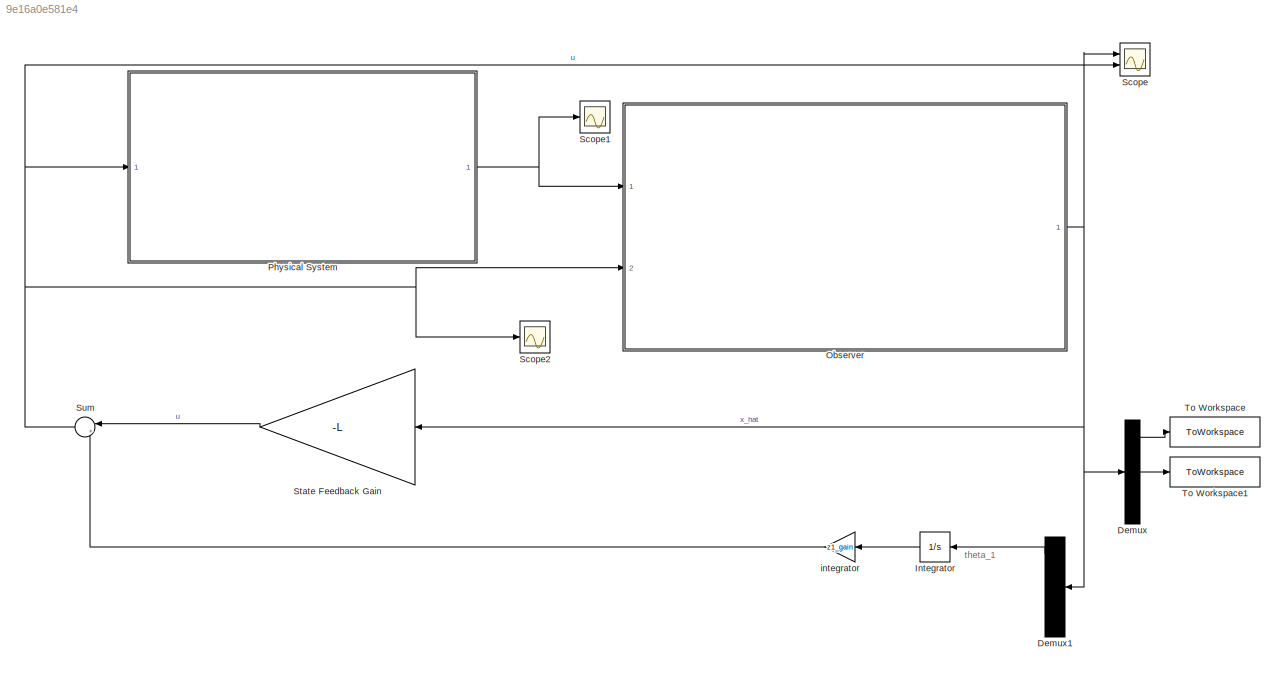
MODEL slx_9e16a0e581e4
KIND model
CONFIG AbsTol = auto
CONFIG EnableMultiTasking = on
CONFIG FixedStep = time_step
CONFIG MaxStep = auto
CONFIG MinStep = auto
CONFIG RelTol = 1e-3
CONFIG SampleTimeConstraint = Unconstrained
CONFIG SolverName = FixedStepAuto
CONFIG StartTime = 0.0
CONFIG StopTime = RunTime
BLOCK [Demux] Demux
  Outputs = 5
  Ports = [1, 5]
BLOCK [Demux] Demux1
  Outputs = 5
  Ports = [1, 5]
BLOCK [Integrator] Integrator
  Ports = [1, 1]
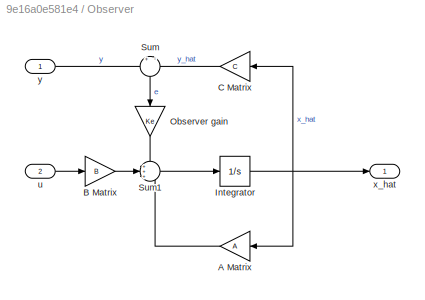
BLOCK [SubSystem] Observer
  Ports = [2, 1]
  RequestExecContextInheritance = off
BLOCK [Gain] Observer/A Matrix
  Gain = A
  Multiplication = Matrix(K*u)
BLOCK [Gain] Observer/B Matrix
  Gain = B
  Multiplication = Matrix(K*u)
BLOCK [Gain] Observer/C Matrix
  Gain = C
  Multiplication = Matrix(K*u)
BLOCK [Integrator] Observer/Integrator
  Ports = [1, 1]
BLOCK [Gain] Observer/Observer gain
  Gain = Ke
  Multiplication = Matrix(K*u)
  NameLocation = left
BLOCK [Sum] Observer/Sum
  Inputs = +|-
  NameLocation = left
  Ports = [2, 1]
BLOCK [Sum] Observer/Sum1
  Inputs = +++
  Ports = [3, 1]
BLOCK [Inport] Observer/u
  Port = 2
BLOCK [Outport] Observer/x_hat
BLOCK [Inport] Observer/y
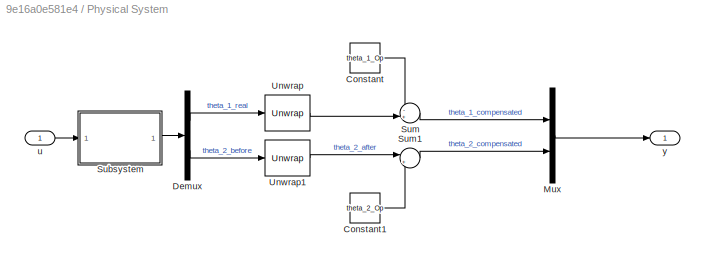
BLOCK [SubSystem] Physical System
  Ports = [1, 1]
  RequestExecContextInheritance = off
BLOCK [Constant] Physical System/Constant
  Value = theta_1_Op
BLOCK [Constant] Physical System/Constant1
  Value = theta_2_Op
BLOCK [Demux] Physical System/Demux
  Outputs = 2
  Ports = [1, 2]
BLOCK [Mux] Physical System/Mux
  DisplayOption = bar
  Inputs = 2
  Ports = [2, 1]
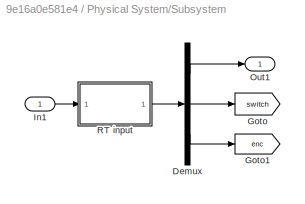
BLOCK [SubSystem] Physical System/Subsystem
  Ports = [1, 1]
  RequestExecContextInheritance = off
BLOCK [Demux] Physical System/Subsystem/Demux
  Outputs = [2 4 1]
  Ports = [1, 3]
BLOCK [Goto] Physical System/Subsystem/Goto
  GotoTag = switch
  TagVisibility = global
BLOCK [Goto] Physical System/Subsystem/Goto1
  GotoTag = enc
  TagVisibility = global
BLOCK [Inport] Physical System/Subsystem/In1
BLOCK [Outport] Physical System/Subsystem/Out1
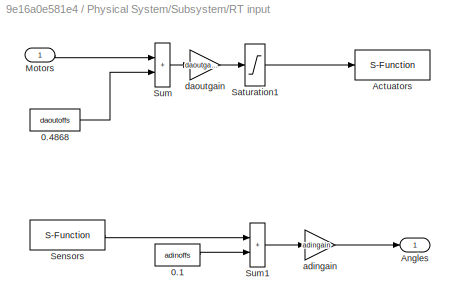
BLOCK [SubSystem] Physical System/Subsystem/RT input
  Ports = [1, 1]
  RequestExecContextInheritance = off
BLOCK [Constant] Physical System/Subsystem/RT input/0.1
  Value = adinoffs
BLOCK [Constant] Physical System/Subsystem/RT input/0.4868
  Value = daoutoffs
BLOCK [S-Function] Physical System/Subsystem/RT input/Actuators
  EnableBusSupport = off
  FunctionName = sfusbout
  Parameters = Ts, fugihandle
  Ports = [1]
  SFcnIsStateOwnerBlock = off
  SFunctionDeploymentMode = off
BLOCK [Outport] Physical System/Subsystem/RT input/Angles
BLOCK [Inport] Physical System/Subsystem/RT input/Motors
BLOCK [Saturate] Physical System/Subsystem/RT input/Saturation1
  LowerLimit = -10
  UpperLimit = 10
BLOCK [S-Function] Physical System/Subsystem/RT input/Sensors
  EnableBusSupport = off
  FunctionName = sfusbin
  Parameters = Ts, fugihandle, channels
  Ports = [0, 1]
  SFcnIsStateOwnerBlock = off
  SFunctionDeploymentMode = off
BLOCK [Sum] Physical System/Subsystem/RT input/Sum
  IconShape = rectangular
  InputSameDT = on
  OutDataTypeStr = Inherit: Same as first input
  Ports = [2, 1]
  SaturateOnIntegerOverflow = on
BLOCK [Sum] Physical System/Subsystem/RT input/Sum1
  IconShape = rectangular
  InputSameDT = on
  OutDataTypeStr = Inherit: Same as first input
  Ports = [2, 1]
  SaturateOnIntegerOverflow = on
BLOCK [Gain] Physical System/Subsystem/RT input/adingain
  Gain = adingain
  OutDataTypeStr = Inherit: Same as input
  ParamDataTypeStr = Inherit: Same as input
  SaturateOnIntegerOverflow = on
BLOCK [Gain] Physical System/Subsystem/RT input/daoutgain
  Gain = daoutgain
  OutDataTypeStr = Inherit: Same as input
  ParamDataTypeStr = Inherit: Same as input
  SaturateOnIntegerOverflow = on
BLOCK [Sum] Physical System/Sum
  Inputs = -+|
  Ports = [2, 1]
BLOCK [Sum] Physical System/Sum1
  Inputs = |+-
  Ports = [2, 1]
BLOCK [Reference] Physical System/Unwrap  REF=dspsigops/Unwrap
  Ports = [1, 1]
  SourceBlock = dspsigops/Unwrap
  SourceProductBaseCode = DS
  SourceType = Unwrap
  UserDataPersistent = on
BLOCK [Reference] Physical System/Unwrap1  REF=dspsigops/Unwrap
  Ports = [1, 1]
  SourceBlock = dspsigops/Unwrap
  SourceProductBaseCode = DS
  SourceType = Unwrap
  UserDataPersistent = on
BLOCK [Inport] Physical System/u
BLOCK [Outport] Physical System/y
BLOCK [Scope] Scope
  Floating = off
  NumInputPorts = 2
  Ports = [2]
  ScopeSpecificationString = Simulink.scopes.TimeScopeBlockCfg('CurrentConfiguration', extmgr.ConfigurationSet(extmgr.Configuration('Core','General UI',true),extmgr.Configuration('Core','Source UI',true),extmgr.Configuration('Sources','WiredSimulink',true,'DataLoggingVariableName','ScopeData1'),extmgr.Configuration('Visuals','Time Domain',true,'SerializedDisplays',{struct('MinYLimReal','-22881963021.15284','MaxYLimReal','3973...<+1697ch>
BLOCK [Scope] Scope1
  Floating = off
  NumInputPorts = 1
  Ports = [1]
  ScopeSpecificationString = Simulink.scopes.TimeScopeBlockCfg('CurrentConfiguration', extmgr.ConfigurationSet(extmgr.Configuration('Core','General UI',true),extmgr.Configuration('Core','Source UI',true),extmgr.Configuration('Sources','WiredSimulink',true,'DataLoggingVariableName','ScopeData2'),extmgr.Configuration('Visuals','Time Domain',true,'SerializedDisplays',{struct('MinYLimReal','-54.64749','MaxYLimReal','46.98935','YL...<+1470ch>
BLOCK [Scope] Scope2
  Floating = off
  NumInputPorts = 1
  Ports = [1]
  ScopeSpecificationString = Simulink.scopes.TimeScopeBlockCfg('CurrentConfiguration', extmgr.ConfigurationSet(extmgr.Configuration('Core','General UI',true),extmgr.Configuration('Core','Source UI',true),extmgr.Configuration('Sources','WiredSimulink',true,'DataLoggingVariableName','ScopeData3'),extmgr.Configuration('Visuals','Time Domain',true,'SerializedDisplays',{struct('MinYLimReal','-89942175.77171','MaxYLimReal','8094795...<+1488ch>
BLOCK [Gain] State Feedback Gain
  Gain = -L
  Multiplication = Matrix(K*u)
BLOCK [Sum] Sum
  Inputs = |+-
  NameLocation = top
  Ports = [2, 1]
BLOCK [ToWorkspace] To Workspace
  FixptAsFi = on
  MaxDataPoints = inf
  Ports = [1]
  SampleTime = -1
  SaveFormat = Timeseries
  VariableName = theta_1_measurement
BLOCK [ToWorkspace] To Workspace1
  FixptAsFi = on
  MaxDataPoints = inf
  Ports = [1]
  SampleTime = -1
  SaveFormat = Timeseries
  VariableName = theta_2_measurement1
BLOCK [Gain] integrator 
  Gain = z1_gain
ANNOTATION (root): theta_1
LINE Demux1:1 -> Integrator:1
LINE Demux:1 -> To Workspace:1
LINE Demux:3 -> To Workspace1:1
LINE Integrator:1 -> integrator :1
LINE Observer/A Matrix:1 -> Observer/Sum1:3
LINE Observer/B Matrix:1 -> Observer/Sum1:2
LINE Observer/C Matrix:1 -> Observer/Sum:2
NET Observer/Integrator:1 -> Observer/A Matrix:1, Observer/C Matrix:1, Observer/x_hat:1
LINE Observer/Observer gain:1 -> Observer/Sum1:1
LINE Observer/Sum1:1 -> Observer/Integrator:1
LINE Observer/Sum:1 -> Observer/Observer gain:1
LINE Observer/u:1 -> Observer/B Matrix:1
LINE Observer/y:1 -> Observer/Sum:1
NET Observer:1 -> Demux1:1, Demux:1, Scope:1, State Feedback Gain:1
LINE Physical System/Constant1:1 -> Physical System/Sum1:2
LINE Physical System/Constant:1 -> Physical System/Sum:1
LINE Physical System/Demux:1 -> Physical System/Unwrap:1
LINE Physical System/Demux:2 -> Physical System/Unwrap1:1
LINE Physical System/Mux:1 -> Physical System/y:1
LINE Physical System/Subsystem/Demux:1 -> Physical System/Subsystem/Out1:1
LINE Physical System/Subsystem/Demux:2 -> Physical System/Subsystem/Goto:1
LINE Physical System/Subsystem/Demux:3 -> Physical System/Subsystem/Goto1:1
LINE Physical System/Subsystem/In1:1 -> Physical System/Subsystem/RT input:1
LINE Physical System/Subsystem/RT input/0.1:1 -> Physical System/Subsystem/RT input/Sum1:2
LINE Physical System/Subsystem/RT input/0.4868:1 -> Physical System/Subsystem/RT input/Sum:2
LINE Physical System/Subsystem/RT input/Motors:1 -> Physical System/Subsystem/RT input/Sum:1
LINE Physical System/Subsystem/RT input/Saturation1:1 -> Physical System/Subsystem/RT input/Actuators:1
LINE Physical System/Subsystem/RT input/Sensors:1 -> Physical System/Subsystem/RT input/Sum1:1
LINE Physical System/Subsystem/RT input/Sum1:1 -> Physical System/Subsystem/RT input/adingain:1
LINE Physical System/Subsystem/RT input/Sum:1 -> Physical System/Subsystem/RT input/daoutgain:1
LINE Physical System/Subsystem/RT input/adingain:1 -> Physical System/Subsystem/RT input/Angles:1
LINE Physical System/Subsystem/RT input/daoutgain:1 -> Physical System/Subsystem/RT input/Saturation1:1
LINE Physical System/Subsystem/RT input:1 -> Physical System/Subsystem/Demux:1
LINE Physical System/Subsystem:1 -> Physical System/Demux:1
LINE Physical System/Sum1:1 -> Physical System/Mux:2
LINE Physical System/Sum:1 -> Physical System/Mux:1
LINE Physical System/Unwrap1:1 -> Physical System/Sum1:1
LINE Physical System/Unwrap:1 -> Physical System/Sum:2
LINE Physical System/u:1 -> Physical System/Subsystem:1
NET Physical System:1 -> Observer:1, Scope1:1
LINE State Feedback Gain:1 -> Sum:1
NET Sum:1 -> Observer:2, Physical System:1, Scope2:1, Scope:2
LINE integrator :1 -> Sum:2
note: NET lines group one-source signal fan-out (src -> all destinations, sorted); 1:1 wires keep LINE
